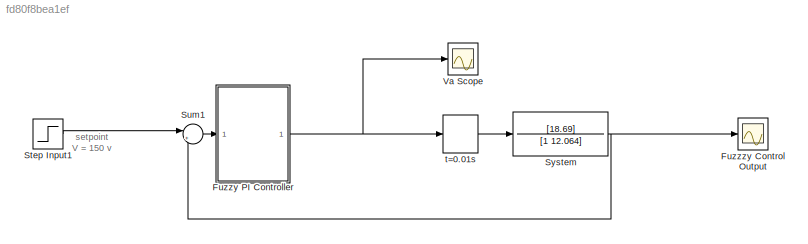
MODEL slx_fd80f8bea1ef
KIND model
CONFIG AbsTol = auto
CONFIG EnableMultiTasking = off
CONFIG FixedStep = auto
CONFIG MaxStep = auto
CONFIG MinStep = auto
CONFIG RelTol = 1e-3
CONFIG SampleTimeConstraint = Unconstrained
CONFIG SolverName = VariableStepAuto
CONFIG StartTime = 0.0
CONFIG StopTime = 1.0
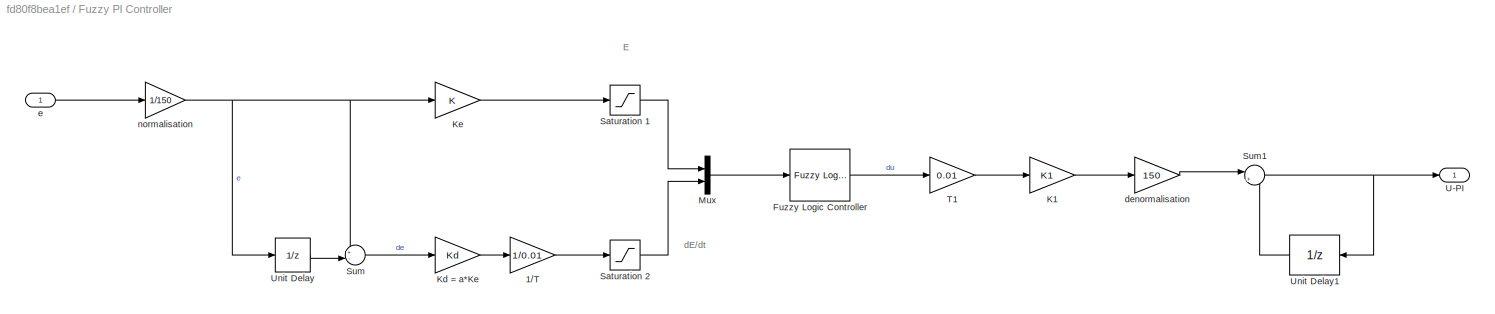
BLOCK [SubSystem] Fuzzy PI Controller
BLOCK [Gain] Fuzzy PI Controller/1//T
  Gain = 1/0.01
BLOCK [Reference] Fuzzy PI Controller/Fuzzy Logic Controller  REF=fuzblock/Fuzzy Logic   (lib defined in mdl_858b3b3e7478)
Controller
  SourceBlock = fuzblock/Fuzzy Logic \nController
  SourceType = Fuzzy Inference System
BLOCK [Gain] Fuzzy PI Controller/K1
  Gain = K1
BLOCK [Gain] Fuzzy PI Controller/Kd = a*Ke
  Gain = Kd
BLOCK [Gain] Fuzzy PI Controller/Ke
BLOCK [Mux] Fuzzy PI Controller/Mux
  DisplayOption = bar
  Inputs = 2
BLOCK [Saturate] Fuzzy PI Controller/Saturation 1
  LowerLimit = -1
  UpperLimit = 1
BLOCK [Saturate] Fuzzy PI Controller/Saturation 2
  LowerLimit = -1
  UpperLimit = 1
BLOCK [Sum] Fuzzy PI Controller/Sum
  Inputs = +-|
BLOCK [Sum] Fuzzy PI Controller/Sum1
  Inputs = |++
BLOCK [Gain] Fuzzy PI Controller/T1
  Gain = 0.01
BLOCK [Outport] Fuzzy PI Controller/U-PI
  VectorParamsAs1DForOutWhenUnconnected = off
BLOCK [UnitDelay] Fuzzy PI Controller/Unit Delay
  HasFrameUpgradeWarning = on
  SampleTime = 0.01
BLOCK [UnitDelay] Fuzzy PI Controller/Unit Delay1
  HasFrameUpgradeWarning = on
  SampleTime = -1
BLOCK [Gain] Fuzzy PI Controller/denormalisation
  Gain = 150
BLOCK [Inport] Fuzzy PI Controller/e
BLOCK [Gain] Fuzzy PI Controller/normalisation
  Gain = 1/150
BLOCK [Scope] Fuzzzy Control Output
  Floating = off
  NumInputPorts = 1
  ScopeSpecificationString = Simulink.scopes.TimeScopeBlockCfg('CurrentConfiguration', extmgr.ConfigurationSet(extmgr.Configuration('Core','General UI',true,'FigureColor',[1 1 1]),extmgr.Configuration('Core','Source UI',true),extmgr.Configuration('Sources','WiredSimulink',true,'DataLogging',true,'DataLoggingSaveFormat','StructureWithTime','DataLoggingLimitDataPoints',true,'DataLoggingDecimation','1','DataLoggingDecimateData',...<+2597ch>
BLOCK [Step] Step Input1
  After = wmax
  SampleTime = 0.1
  Time = 0
BLOCK [Sum] Sum1
  Inputs = |+-
BLOCK [TransferFcn] System
  Denominator = [1 12.064]
  Numerator = [18.69]
BLOCK [Scope] Va Scope
  Floating = off
  NumInputPorts = 1
  ScopeSpecificationString = Simulink.scopes.TimeScopeBlockCfg('CurrentConfiguration', extmgr.ConfigurationSet(extmgr.Configuration('Core','General UI',true,'FigureColor',[1 1 1]),extmgr.Configuration('Core','Source UI',true),extmgr.Configuration('Sources','WiredSimulink',true,'DataLoggingVariableName','ScopeData1'),extmgr.Configuration('Visuals','Time Domain',true,'SerializedDisplays',{struct('MinYLimReal','0.31313','MaxYLim...<+1683ch>
BLOCK [ZeroOrderHold] t=0.01s
  SampleTime = 0.01
ANNOTATION (root): setpoint V = 150 v
ANNOTATION Fuzzy PI Controller: E
ANNOTATION Fuzzy PI Controller: dE/dt
LINE Fuzzy PI Controller/1//T:1 -> Fuzzy PI Controller/Saturation 2:1
LINE Fuzzy PI Controller/Fuzzy Logic Controller:1 -> Fuzzy PI Controller/T1:1
LINE Fuzzy PI Controller/K1:1 -> Fuzzy PI Controller/denormalisation:1
LINE Fuzzy PI Controller/Kd = a*Ke:1 -> Fuzzy PI Controller/1//T:1
LINE Fuzzy PI Controller/Ke:1 -> Fuzzy PI Controller/Saturation 1:1
LINE Fuzzy PI Controller/Mux:1 -> Fuzzy PI Controller/Fuzzy Logic Controller:1
LINE Fuzzy PI Controller/Saturation 1:1 -> Fuzzy PI Controller/Mux:1
LINE Fuzzy PI Controller/Saturation 2:1 -> Fuzzy PI Controller/Mux:2
NET Fuzzy PI Controller/Sum1:1 -> Fuzzy PI Controller/U-PI:1, Fuzzy PI Controller/Unit Delay1:1
LINE Fuzzy PI Controller/Sum:1 -> Fuzzy PI Controller/Kd = a*Ke:1
LINE Fuzzy PI Controller/T1:1 -> Fuzzy PI Controller/K1:1
LINE Fuzzy PI Controller/Unit Delay1:1 -> Fuzzy PI Controller/Sum1:2
LINE Fuzzy PI Controller/Unit Delay:1 -> Fuzzy PI Controller/Sum:2
LINE Fuzzy PI Controller/denormalisation:1 -> Fuzzy PI Controller/Sum1:1
LINE Fuzzy PI Controller/e:1 -> Fuzzy PI Controller/normalisation:1
NET Fuzzy PI Controller/normalisation:1 -> Fuzzy PI Controller/Ke:1, Fuzzy PI Controller/Sum:1, Fuzzy PI Controller/Unit Delay:1
NET Fuzzy PI Controller:1 -> Va Scope:1, t=0.01s:1
LINE Step Input1:1 -> Sum1:1
LINE Sum1:1 -> Fuzzy PI Controller:1
NET System:1 -> Fuzzzy Control Output:1, Sum1:2
LINE t=0.01s:1 -> System:1
note: NET lines group one-source signal fan-out (src -> all destinations, sorted); 1:1 wires keep LINE
